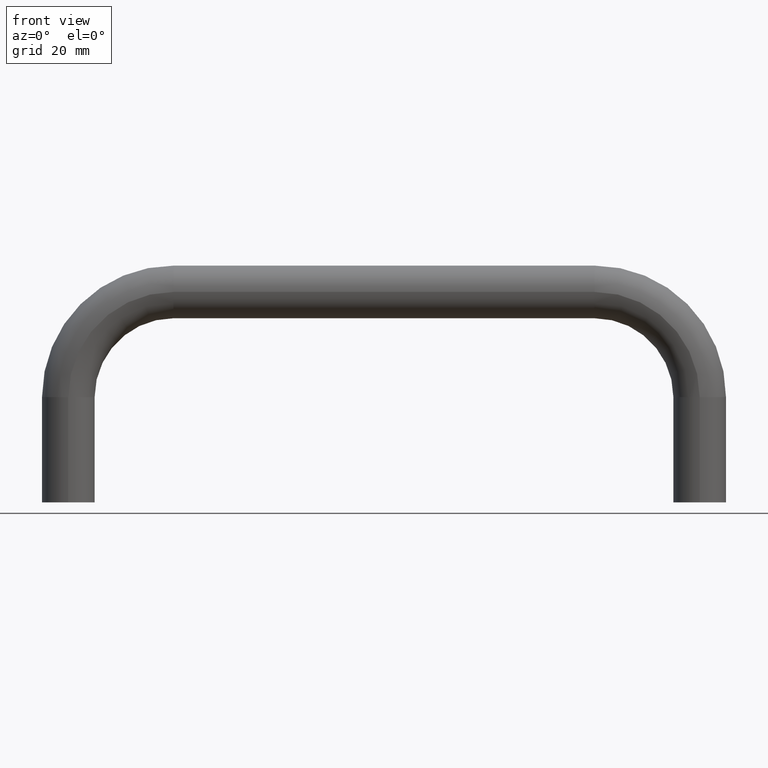
[diagram: clean part render]
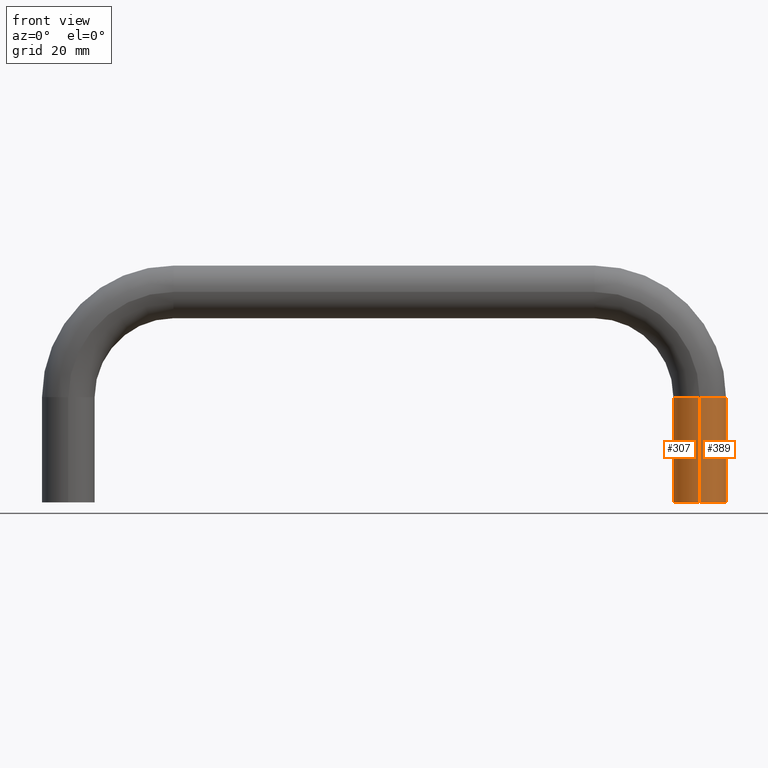
[diagram: same view with one multi-face feature highlighted, each face labeled with its STEP entity id]
A machine part, front view. The highlighted faces form ONE feature: a constant-radius fillet chain: 2 tangent blend faces with common blend radius 5 mm. The faces share edges in the B-rep.
Their STEP definitions:
[1] entity #389 (Cylinder):
#27=CARTESIAN_POINT('',(125.0,-5.500000000000000,3.367779E-016));
#28=VERTEX_POINT('',#27);
#35=CARTESIAN_POINT('',(120.0,-10.500000000000000,6.429396E-016));
#36=VERTEX_POINT('',#35);
#37=CARTESIAN_POINT('',(120.0,-5.500000000000000,3.367779E-016));
#38=DIRECTION('',(0.0,-6.123234E-017,-1.0));
#39=DIRECTION('',(1.0,0.0,0.0));
#40=AXIS2_PLACEMENT_3D('',#37,#38,#39);
#41=CIRCLE('',#40,5.0);
#42=EDGE_CURVE('',#28,#36,#41,.T.);
#290=CARTESIAN_POINT('',(120.0,-10.499999999999998,20.0));
#291=VERTEX_POINT('',#290);
#292=CARTESIAN_POINT('',(120.0,-10.499999999999998,20.0));
#293=DIRECTION('',(0.0,0.0,-1.0));
#294=VECTOR('',#293,20.0);
#295=LINE('',#292,#294);
#296=EDGE_CURVE('',#291,#36,#295,.T.);
#365=CARTESIAN_POINT('',(120.0,-5.500000000000000,3.367779E-016));
#366=DIRECTION('',(0.0,-6.123234E-017,-1.0));
#367=DIRECTION('',(1.0,0.0,0.0));
#368=AXIS2_PLACEMENT_3D('',#365,#366,#367);
#369=CYLINDRICAL_SURFACE('',#368,5.0);
#370=CARTESIAN_POINT('',(125.0,-5.499999999999999,20.0));
#371=VERTEX_POINT('',#370);
#372=CARTESIAN_POINT('',(125.0,-5.500000000000000,3.367779E-016));
#373=DIRECTION('',(0.0,0.0,1.0));
#374=VECTOR('',#373,20.0);
#375=LINE('',#372,#374);
#376=EDGE_CURVE('',#28,#371,#375,.T.);
#377=ORIENTED_EDGE('',*,*,#376,.T.);
#378=CARTESIAN_POINT('',(120.0,-5.499999999999999,20.0));
#379=DIRECTION('',(0.0,-6.123234E-017,-1.0));
#380=DIRECTION('',(1.0,0.0,0.0));
#381=AXIS2_PLACEMENT_3D('',#378,#379,#380);
#382=CIRCLE('',#381,5.0);
#383=EDGE_CURVE('',#371,#291,#382,.T.);
#384=ORIENTED_EDGE('',*,*,#383,.T.);
#385=ORIENTED_EDGE('',*,*,#296,.T.);
#386=ORIENTED_EDGE('',*,*,#42,.F.);
#387=EDGE_LOOP('',(#377,#384,#385,#386));
#388=FACE_OUTER_BOUND('',#387,.T.);
#389=ADVANCED_FACE('',(#388),#369,.T.);
[2] entity #307 (Cylinder):
#35=CARTESIAN_POINT('',(120.0,-10.500000000000000,6.429396E-016));
#36=VERTEX_POINT('',#35);
#44=CARTESIAN_POINT('',(115.0,-5.500000000000000,3.367779E-016));
#45=VERTEX_POINT('',#44);
#46=CARTESIAN_POINT('',(120.0,-5.500000000000000,3.367779E-016));
#47=DIRECTION('',(0.0,6.123234E-017,1.0));
#48=DIRECTION('',(-1.0,0.0,0.0));
#49=AXIS2_PLACEMENT_3D('',#46,#47,#48);
#50=CIRCLE('',#49,5.0);
#51=EDGE_CURVE('',#45,#36,#50,.T.);
#276=CARTESIAN_POINT('',(120.0,-5.499999999999999,20.0));
#277=DIRECTION('',(0.0,6.123234E-017,1.0));
#278=DIRECTION('',(-1.0,0.0,0.0));
#279=AXIS2_PLACEMENT_3D('',#276,#277,#278);
#280=CYLINDRICAL_SURFACE('',#279,5.0);
#281=CARTESIAN_POINT('',(115.0,-5.499999999999999,20.0));
#282=VERTEX_POINT('',#281);
#283=CARTESIAN_POINT('',(115.0,-5.499999999999999,20.0));
#284=DIRECTION('',(0.0,0.0,-1.0));
#285=VECTOR('',#284,20.0);
#286=LINE('',#283,#285);
#287=EDGE_CURVE('',#282,#45,#286,.T.);
#288=ORIENTED_EDGE('',*,*,#287,.T.);
#289=ORIENTED_EDGE('',*,*,#51,.T.);
#290=CARTESIAN_POINT('',(120.0,-10.499999999999998,20.0));
#291=VERTEX_POINT('',#290);
#292=CARTESIAN_POINT('',(120.0,-10.499999999999998,20.0));
#293=DIRECTION('',(0.0,0.0,-1.0));
#294=VECTOR('',#293,20.0);
#295=LINE('',#292,#294);
#296=EDGE_CURVE('',#291,#36,#295,.T.);
#297=ORIENTED_EDGE('',*,*,#296,.F.);
#298=CARTESIAN_POINT('',(120.0,-5.499999999999999,20.0));
#299=DIRECTION('',(0.0,6.123234E-017,1.0));
#300=DIRECTION('',(-1.0,0.0,0.0));
#301=AXIS2_PLACEMENT_3D('',#298,#299,#300);
#302=CIRCLE('',#301,5.0);
#303=EDGE_CURVE('',#282,#291,#302,.T.);
#304=ORIENTED_EDGE('',*,*,#303,.F.);
#305=EDGE_LOOP('',(#288,#289,#297,#304));
#306=FACE_OUTER_BOUND('',#305,.T.);
#307=ADVANCED_FACE('',(#306),#280,.T.);